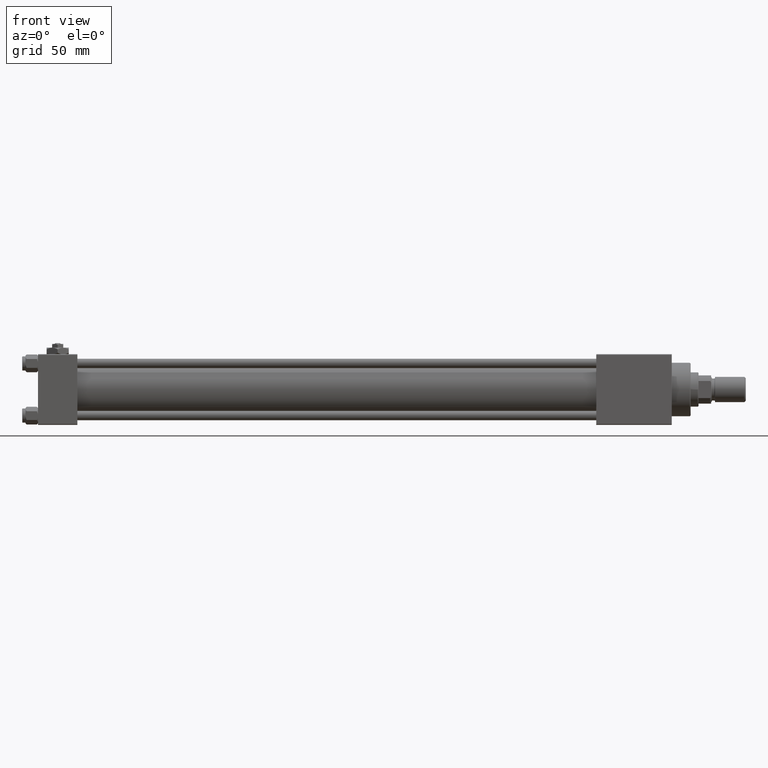
[diagram: clean part render]
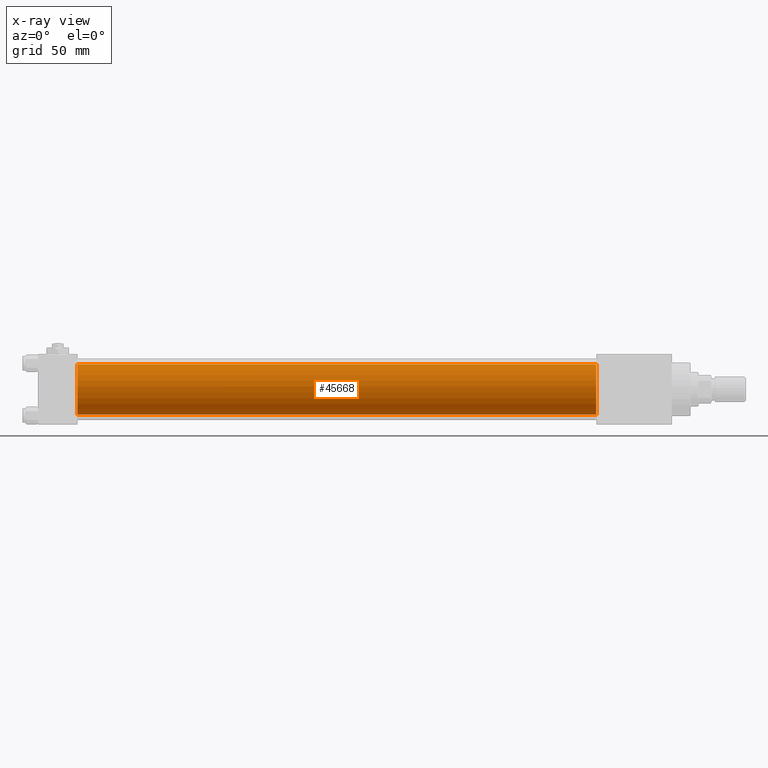
[diagram: x-ray — body ghosted, one internal face saturated and labeled with its STEP entity id]
A machine part, front view, then the same camera in x-ray: the body is ghosted and one INTERNAL B-rep face — a face not visible from any outside direction — is saturated and labeled: STEP entity #45668.
In plain terms, the highlighted cylindrical surface (edge-blend (fillet) strip) has radius 16 mm, axis along (-1, -0, -0).
Its self-contained STEP definition (entity closure, byte-faithful):
#686 = CARTESIAN_POINT ( 'NONE',  ( 355.0000000000000568, -2.602085213965210642E-15, 0.000000000000000000 ) ) ;
#1866 = ORIENTED_EDGE ( 'NONE', *, *, #33099, .T. ) ;
#2701 = LINE ( 'NONE', #51035, #20361 ) ;
#3251 = EDGE_LOOP ( 'NONE', ( #42265, #1866, #43952, #39714 ) ) ;
#3781 = CARTESIAN_POINT ( 'NONE',  ( 355.0000000000000568, -2.602085213965210642E-15, 16.00000000000000000 ) ) ;
#4347 = AXIS2_PLACEMENT_3D ( 'NONE', #11507, #19237, #23469 ) ;
#6122 = VERTEX_POINT ( 'NONE', #35736 ) ;
#6926 = CIRCLE ( 'NONE', #34068, 16.00000000000000000 ) ;
#9328 = VERTEX_POINT ( 'NONE', #3781 ) ;
#9874 = DIRECTION ( 'NONE',  ( -1.000000000000000000, -0.000000000000000000, -0.000000000000000000 ) ) ;
#10307 = DIRECTION ( 'NONE',  ( -1.000000000000000000, -0.000000000000000000, -0.000000000000000000 ) ) ;
#11507 = CARTESIAN_POINT ( 'NONE',  ( 355.0000000000000568, -2.602085213965210642E-15, 0.000000000000000000 ) ) ;
#13533 = EDGE_CURVE ( 'NONE', #49698, #6122, #6926, .T. ) ;
#15172 = EDGE_CURVE ( 'NONE', #9328, #28661, #34980, .T. ) ;
#16889 = DIRECTION ( 'NONE',  ( -1.000000000000000000, -0.000000000000000000, -0.000000000000000000 ) ) ;
#18536 = VECTOR ( 'NONE', #10307, 1000.000000000000000 ) ;
#19237 = DIRECTION ( 'NONE',  ( 1.000000000000000000, 0.000000000000000000, 0.000000000000000000 ) ) ;
#20361 = VECTOR ( 'NONE', #9874, 1000.000000000000000 ) ;
#20874 = FACE_OUTER_BOUND ( 'NONE', #3251, .T. ) ;
#23469 = DIRECTION ( 'NONE',  ( 0.000000000000000000, 0.000000000000000000, -1.000000000000000000 ) ) ;
#28661 = VERTEX_POINT ( 'NONE', #34821 ) ;
#29645 = CARTESIAN_POINT ( 'NONE',  ( 25.00000000000000000, -2.602085213965210642E-15, 16.00000000000000000 ) ) ;
#33075 = DIRECTION ( 'NONE',  ( 0.000000000000000000, 0.000000000000000000, 1.000000000000000000 ) ) ;
#33099 = EDGE_CURVE ( 'NONE', #28661, #6122, #46691, .T. ) ;
#33595 = CYLINDRICAL_SURFACE ( 'NONE', #46819, 16.00000000000000000 ) ;
#34068 = AXIS2_PLACEMENT_3D ( 'NONE', #35701, #43663, #51902 ) ;
#34821 = CARTESIAN_POINT ( 'NONE',  ( 355.0000000000000568, -6.426503353294456087E-16, -16.00000000000000000 ) ) ;
#34980 = CIRCLE ( 'NONE', #4347, 16.00000000000000000 ) ;
#35701 = CARTESIAN_POINT ( 'NONE',  ( 25.00000000000000000, -2.602085213965210642E-15, 0.000000000000000000 ) ) ;
#35736 = CARTESIAN_POINT ( 'NONE',  ( 25.00000000000000000, -6.426503353294456087E-16, -16.00000000000000000 ) ) ;
#39714 = ORIENTED_EDGE ( 'NONE', *, *, #39776, .F. ) ;
#39776 = EDGE_CURVE ( 'NONE', #9328, #49698, #2701, .T. ) ;
#41930 = CARTESIAN_POINT ( 'NONE',  ( 355.0000000000000568, -6.426503353294456087E-16, -16.00000000000000000 ) ) ;
#42265 = ORIENTED_EDGE ( 'NONE', *, *, #15172, .T. ) ;
#43663 = DIRECTION ( 'NONE',  ( 1.000000000000000000, 0.000000000000000000, 0.000000000000000000 ) ) ;
#43952 = ORIENTED_EDGE ( 'NONE', *, *, #13533, .F. ) ;
#45668 = ADVANCED_FACE ( 'NONE', ( #20874 ), #33595, .F. ) ;
#46691 = LINE ( 'NONE', #41930, #18536 ) ;
#46819 = AXIS2_PLACEMENT_3D ( 'NONE', #686, #16889, #33075 ) ;
#49698 = VERTEX_POINT ( 'NONE', #29645 ) ;
#51035 = CARTESIAN_POINT ( 'NONE',  ( 355.0000000000000568, -2.602085213965210642E-15, 16.00000000000000000 ) ) ;
#51902 = DIRECTION ( 'NONE',  ( 0.000000000000000000, 0.000000000000000000, -1.000000000000000000 ) ) ;